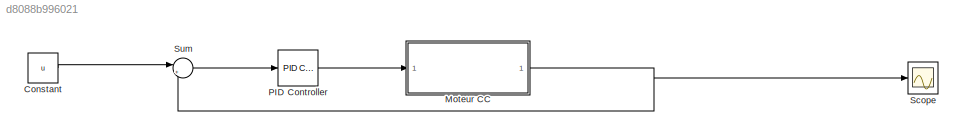
MODEL slx_d8088b996021
KIND model
CONFIG AbsTol = auto
CONFIG EnableMultiTasking = off
CONFIG FixedStep = auto
CONFIG MaxStep = auto
CONFIG MinStep = auto
CONFIG RelTol = 1e-3
CONFIG SampleTimeConstraint = Unconstrained
CONFIG Solver = VariableStepAuto
CONFIG SolverName = VariableStepAuto
CONFIG StartTime = 0.0
CONFIG StopTime = 10.0
BLOCK [Constant] Constant
  Value = u
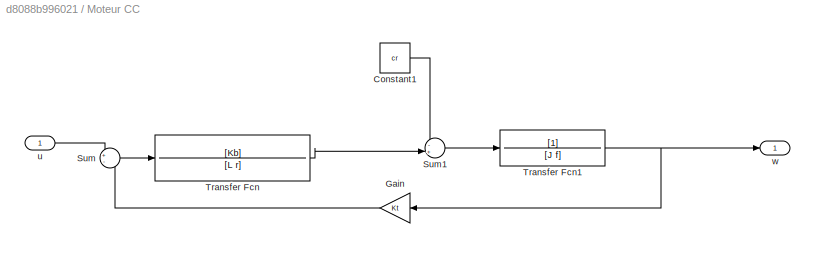
BLOCK [SubSystem] Moteur CC
  Ports = [1, 1]
  RequestExecContextInheritance = off
BLOCK [Constant] Moteur CC/Constant1
  Value = cr
BLOCK [Gain] Moteur CC/Gain
  Gain = Kt
  OutDataTypeStr = Inherit: Inherit via internal rule
  ParamDataTypeStr = Inherit: Inherit via internal rule
  SaturateOnIntegerOverflow = off
BLOCK [Sum] Moteur CC/Sum
  IconShape = round
  InputSameDT = off
  Inputs = +-
  OutDataTypeStr = Inherit: Inherit via internal rule
  Ports = [2, 1]
  SaturateOnIntegerOverflow = off
BLOCK [Sum] Moteur CC/Sum1
  IconShape = round
  InputSameDT = off
  Inputs = -+|
  OutDataTypeStr = Inherit: Inherit via internal rule
  Ports = [2, 1]
  SaturateOnIntegerOverflow = off
BLOCK [TransferFcn] Moteur CC/Transfer Fcn
  Denominator = [L r]
  Numerator = [Kb]
BLOCK [TransferFcn] Moteur CC/Transfer Fcn1
  Denominator = [J f]
BLOCK [Inport] Moteur CC/u
  IconDisplay = Port number
BLOCK [Outport] Moteur CC/w
  IconDisplay = Port number
BLOCK [Reference] PID Controller  REF=simulink/Continuous/PID Controller
  Ports = [1, 1]
  SourceBlock = simulink/Continuous/PID Controller
  SourceProductBaseCode = SL
  SourceProductName = Simulink
  SourceType = PID 1dof
BLOCK [Scope] Scope
  Floating = off
  NumInputPorts = 1
  Ports = [1]
  ScopeSpecificationString = Simulink.scopes.TimeScopeBlockCfg('CurrentConfiguration', extmgr.ConfigurationSet(extmgr.Configuration('Core','General UI',true),extmgr.Configuration('Core','Source UI',true),extmgr.Configuration('Sources','WiredSimulink',true),extmgr.Configuration('Visuals','Time Domain',true,'SerializedDisplays',{struct('MinYLimReal','-0.13212','MaxYLimReal','1.18801','YLabelReal','','MinYLimMag','0.00000','MaxY...<+1329ch>
BLOCK [Sum] Sum
  IconShape = round
  InputSameDT = off
  Inputs = |+-
  OutDataTypeStr = Inherit: Inherit via internal rule
  Ports = [2, 1]
  SaturateOnIntegerOverflow = off
LINE Constant:1 -> Sum:1
LINE Moteur CC/Constant1:1 -> Moteur CC/Sum1:1
LINE Moteur CC/Gain:1 -> Moteur CC/Sum:2
LINE Moteur CC/Sum1:1 -> Moteur CC/Transfer Fcn1:1
LINE Moteur CC/Sum:1 -> Moteur CC/Transfer Fcn:1
NET Moteur CC/Transfer Fcn1:1 -> Moteur CC/Gain:1, Moteur CC/w:1
LINE Moteur CC/Transfer Fcn:1 -> Moteur CC/Sum1:2
LINE Moteur CC/u:1 -> Moteur CC/Sum:1
NET Moteur CC:1 -> Scope:1, Sum:2
LINE PID Controller:1 -> Moteur CC:1
LINE Sum:1 -> PID Controller:1
note: NET lines group one-source signal fan-out (src -> all destinations, sorted); 1:1 wires keep LINE
